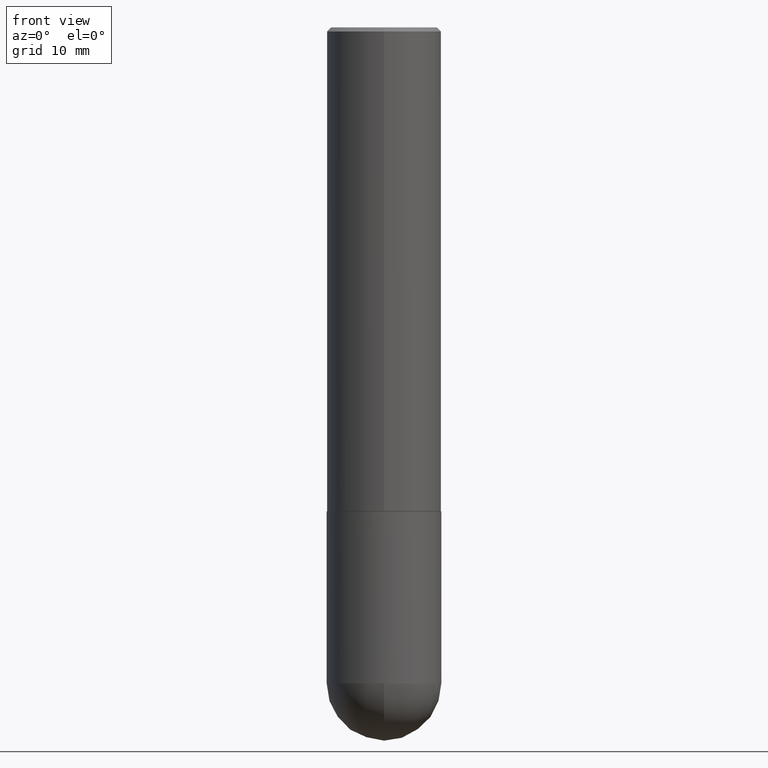
[diagram: clean part render]
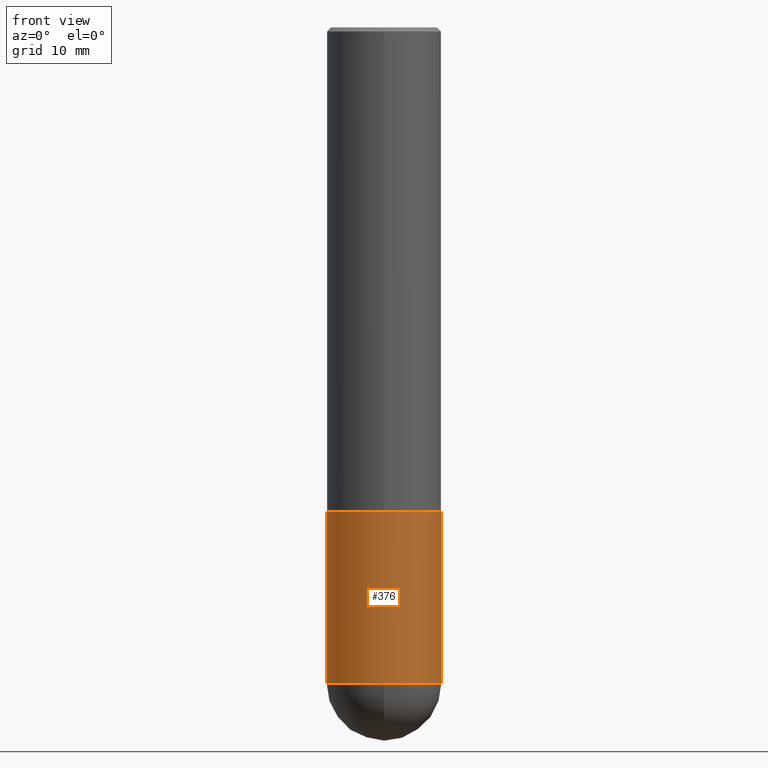
[diagram: same view with one face highlighted and labeled with its STEP entity id]
A machine part, front view. The second image highlights one B-rep face of the part: STEP entity #376.
In plain terms, the highlighted cylindrical surface (partial cylindrical patch) has radius 7.1438 mm, axis along (-0, 0, 1).
Its self-contained STEP definition (entity closure, byte-faithful):
#2 = VERTEX_POINT ( 'NONE', #383 ) ;
#5 = VERTEX_POINT ( 'NONE', #91 ) ;
#12 = CARTESIAN_POINT ( 'NONE',  ( 0.000000000000000000, 0.000000000000000000, 0.000000000000000000 ) ) ;
#18 = DIRECTION ( 'NONE',  ( -2.445468806185136597E-29, 3.491481338843145583E-15, 1.000000000000000000 ) ) ;
#26 = CARTESIAN_POINT ( 'NONE',  ( 5.807988414689698296E-29, -8.292268179752468540E-15, -2.374999999999999556 ) ) ;
#51 = DIRECTION ( 'NONE',  ( -2.445468806185136597E-29, 3.491481338843145583E-15, 1.000000000000000000 ) ) ;
#52 = CIRCLE ( 'NONE', #121, 0.2812500000000000555 ) ;
#55 = EDGE_CURVE ( 'NONE', #100, #357, #412, .T. ) ;
#63 = DIRECTION ( 'NONE',  ( -2.445468806185136877E-29, 3.491481338843145188E-15, 1.000000000000000000 ) ) ;
#74 = EDGE_CURVE ( 'NONE', #5, #164, #347, .T. ) ;
#76 = VECTOR ( 'NONE', #63, 39.37007874015748143 ) ;
#79 = FACE_OUTER_BOUND ( 'NONE', #290, .T. ) ;
#91 = CARTESIAN_POINT ( 'NONE',  ( -0.2812500000000000555, -7.766835425251639371E-15, -3.218749999999999556 ) ) ;
#100 = VERTEX_POINT ( 'NONE', #181 ) ;
#108 = CARTESIAN_POINT ( 'NONE',  ( 7.871352719908407300E-29, -1.123820555940137375E-14, -3.218749999999999556 ) ) ;
#121 = AXIS2_PLACEMENT_3D ( 'NONE', #108, #260, #205 ) ;
#123 = CARTESIAN_POINT ( 'NONE',  ( 0.2812500000000000555, -1.963958253099262907E-15, 1.371424718192607012E-29 ) ) ;
#135 = CARTESIAN_POINT ( 'NONE',  ( 0.2812500000000000000, -1.025622643285173184E-14, -2.374999999999999556 ) ) ;
#159 = CIRCLE ( 'NONE', #278, 0.2812500000000000555 ) ;
#164 = VERTEX_POINT ( 'NONE', #255 ) ;
#181 = CARTESIAN_POINT ( 'NONE',  ( 0.2812500000000000555, -1.172919512267618602E-14, -3.218749999999999556 ) ) ;
#183 = ORIENTED_EDGE ( 'NONE', *, *, #250, .T. ) ;
#205 = DIRECTION ( 'NONE',  ( 1.000000000000000000, -6.982962677686268288E-15, 0.000000000000000000 ) ) ;
#213 = AXIS2_PLACEMENT_3D ( 'NONE', #12, #259, #397 ) ;
#221 = VECTOR ( 'NONE', #249, 39.37007874015748143 ) ;
#222 = ORIENTED_EDGE ( 'NONE', *, *, #269, .F. ) ;
#228 = ORIENTED_EDGE ( 'NONE', *, *, #74, .F. ) ;
#233 = DIRECTION ( 'NONE',  ( 1.000000000000000000, -6.982962677686268288E-15, 0.000000000000000000 ) ) ;
#239 = AXIS2_PLACEMENT_3D ( 'NONE', #26, #51, #241 ) ;
#241 = DIRECTION ( 'NONE',  ( 1.000000000000000000, -6.982962677686269866E-15, 0.000000000000000000 ) ) ;
#249 = DIRECTION ( 'NONE',  ( -2.445468806185136877E-29, 3.491481338843145188E-15, 1.000000000000000000 ) ) ;
#250 = EDGE_CURVE ( 'NONE', #5, #2, #159, .T. ) ;
#255 = CARTESIAN_POINT ( 'NONE',  ( -0.2812500000000000000, -7.766835425251637793E-15, -2.374999999999999556 ) ) ;
#259 = DIRECTION ( 'NONE',  ( -2.445468806185136597E-29, 3.491481338843145583E-15, 1.000000000000000000 ) ) ;
#260 = DIRECTION ( 'NONE',  ( -2.445468806185136597E-29, 3.491481338843145583E-15, 1.000000000000000000 ) ) ;
#269 = EDGE_CURVE ( 'NONE', #164, #357, #358, .T. ) ;
#278 = AXIS2_PLACEMENT_3D ( 'NONE', #313, #18, #233 ) ;
#281 = ORIENTED_EDGE ( 'NONE', *, *, #350, .T. ) ;
#290 = EDGE_LOOP ( 'NONE', ( #228, #183, #281, #340, #222 ) ) ;
#313 = CARTESIAN_POINT ( 'NONE',  ( 7.871352719908407300E-29, -1.123820555940137375E-14, -3.218749999999999556 ) ) ;
#317 = CARTESIAN_POINT ( 'NONE',  ( -0.2812500000000000555, 1.998401444325282167E-15, -1.383450494134192269E-29 ) ) ;
#336 = CYLINDRICAL_SURFACE ( 'NONE', #213, 0.2812500000000000555 ) ;
#340 = ORIENTED_EDGE ( 'NONE', *, *, #55, .T. ) ;
#347 = LINE ( 'NONE', #317, #221 ) ;
#350 = EDGE_CURVE ( 'NONE', #2, #100, #52, .T. ) ;
#357 = VERTEX_POINT ( 'NONE', #135 ) ;
#358 = CIRCLE ( 'NONE', #239, 0.2812500000000000000 ) ;
#376 = ADVANCED_FACE ( 'NONE', ( #79 ), #336, .T. ) ;
#383 = CARTESIAN_POINT ( 'NONE',  ( -1.998401444325206042E-15, -0.2812500000000116573, -3.218749999999998668 ) ) ;
#397 = DIRECTION ( 'NONE',  ( 1.000000000000000000, -6.982962677686266711E-15, 4.876176775795935232E-29 ) ) ;
#412 = LINE ( 'NONE', #123, #76 ) ;